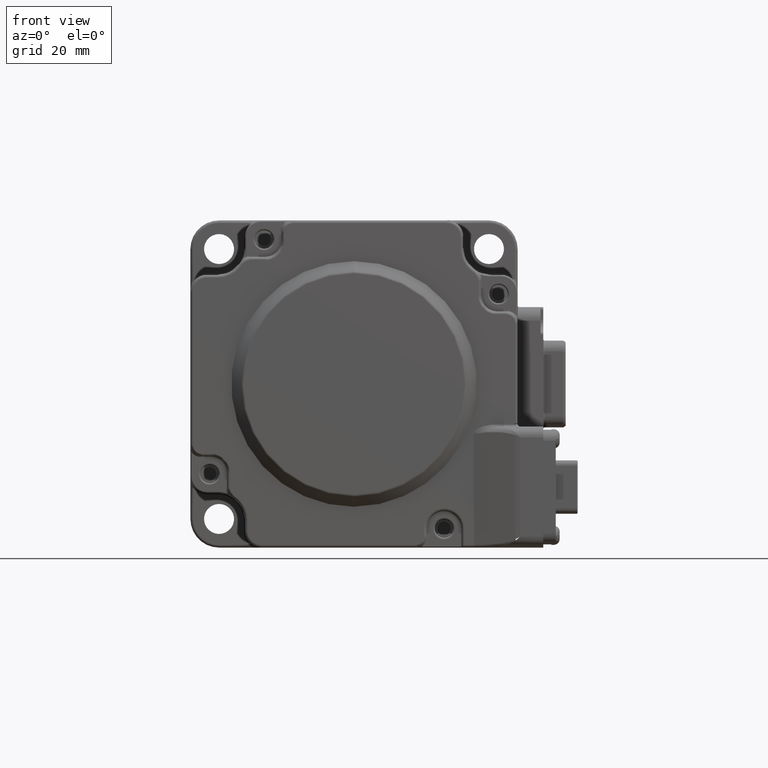
[diagram: clean part render]
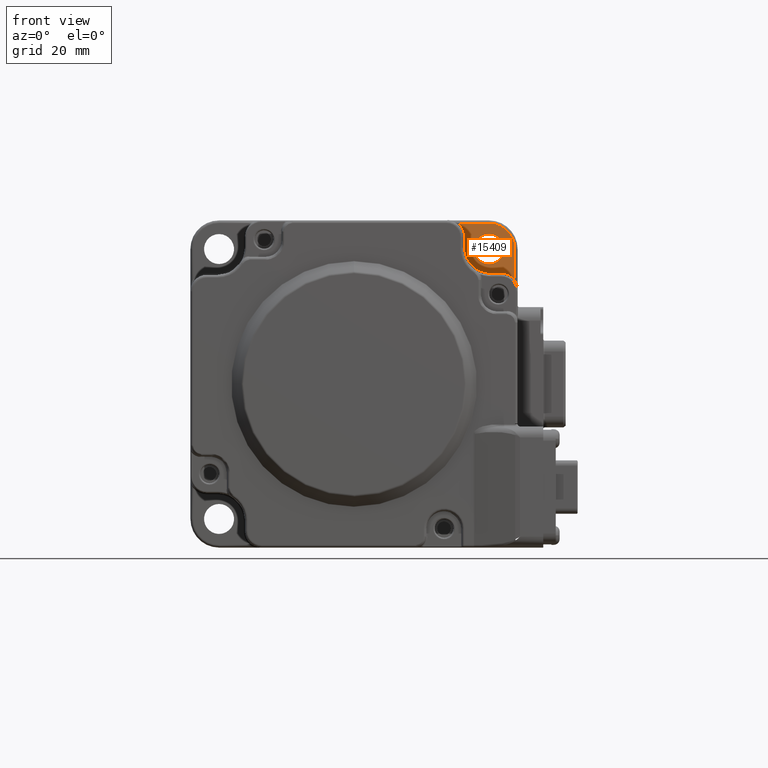
[diagram: same view with one face highlighted and labeled with its STEP entity id]
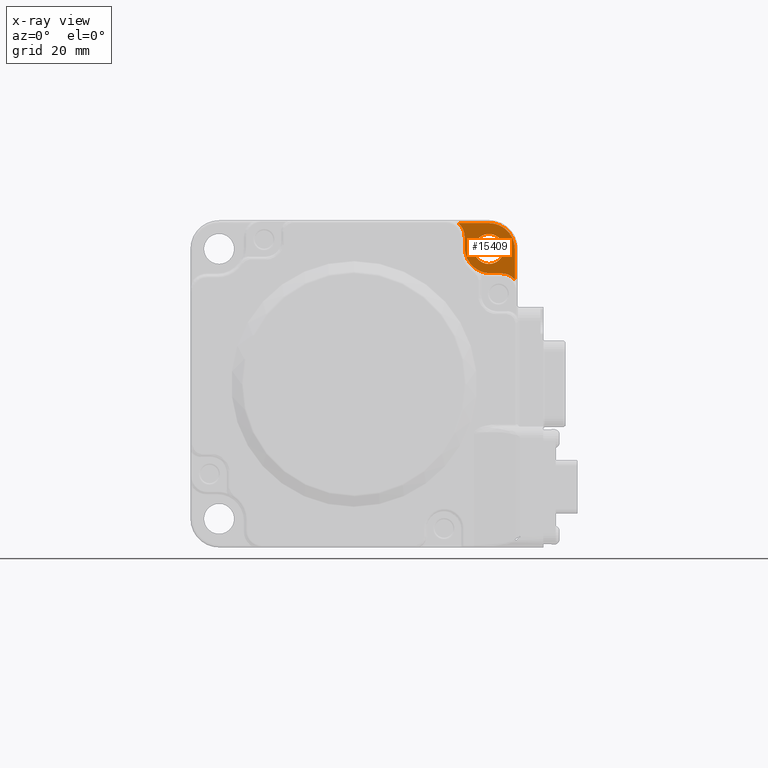
[diagram: x-ray of the same camera — body ghosted, the highlighted face saturated]
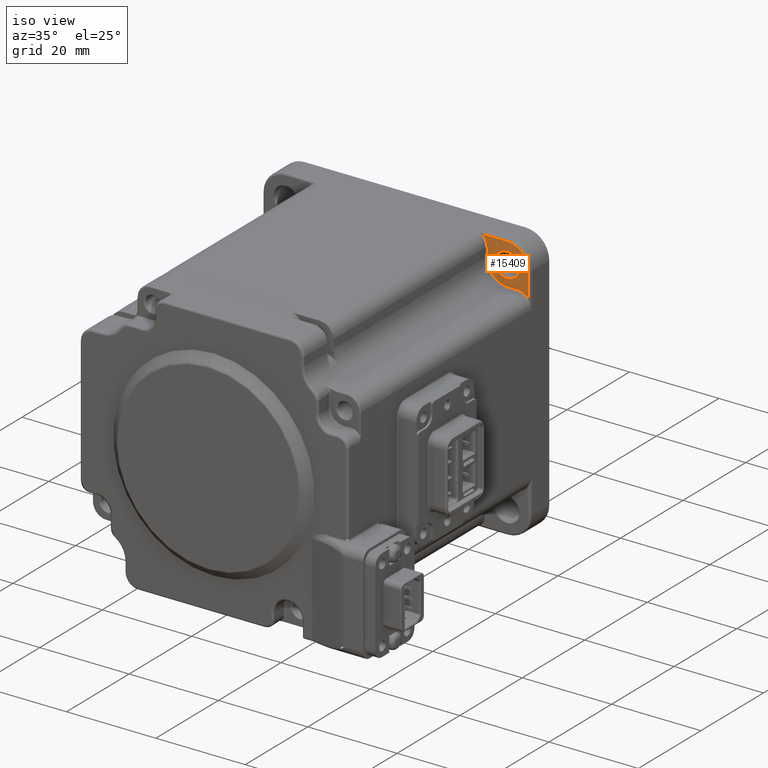
[diagram: same view with one face highlighted and labeled with its STEP entity id]
A machine part, front view. The second image highlights one B-rep face of the part: STEP entity #15409.
The next image is the same camera in x-ray: the body ghosted, the highlighted face saturated — about 0% of this face is hidden behind the body in this view.
A second angle (iso view) of the same face is appended — the face is thin or edge-on in the first view.
In plain terms, the highlighted planar face has unit normal (0, -1, 0).
Its self-contained STEP definition (entity closure, byte-faithful):
#425 = CARTESIAN_POINT ( 'NONE',  ( 0.000000000000000000, 5.500000000000000000, 20.30000000000000426 ) ) ;
#681 = DIRECTION ( 'NONE',  ( 0.000000000000000000, 0.000000000000000000, -1.000000000000000000 ) ) ;
#827 = CIRCLE ( 'NONE', #19339, 3.299999999999998934 ) ;
#946 = ORIENTED_EDGE ( 'NONE', *, *, #27620, .T. ) ;
#1015 = EDGE_CURVE ( 'NONE', #10910, #10498, #18280, .T. ) ;
#1281 = DIRECTION ( 'NONE',  ( 0.000000000000000000, 0.000000000000000000, -1.000000000000000000 ) ) ;
#1431 = ORIENTED_EDGE ( 'NONE', *, *, #1763, .T. ) ;
#1540 = VERTEX_POINT ( 'NONE', #9597 ) ;
#1646 = VERTEX_POINT ( 'NONE', #14825 ) ;
#1763 = EDGE_CURVE ( 'NONE', #1859, #10910, #4348, .T. ) ;
#1859 = VERTEX_POINT ( 'NONE', #18486 ) ;
#2056 = CIRCLE ( 'NONE', #11103, 4.750000000000000888 ) ;
#2080 = DIRECTION ( 'NONE',  ( 0.000000000000000000, 0.000000000000000000, -1.000000000000000000 ) ) ;
#2357 = CARTESIAN_POINT ( 'NONE',  ( 25.00000000000003197, 5.500000000000000000, 20.30000000000000426 ) ) ;
#2659 = DIRECTION ( 'NONE',  ( -0.000000000000000000, 1.000000000000000000, -0.000000000000000000 ) ) ;
#3117 = EDGE_CURVE ( 'NONE', #1540, #13884, #827, .T. ) ;
#3940 = CARTESIAN_POINT ( 'NONE',  ( 29.50000000000000000, 5.500000000000000000, 24.74999999999999645 ) ) ;
#4348 = LINE ( 'NONE', #17928, #11992 ) ;
#4621 = CARTESIAN_POINT ( 'NONE',  ( 24.74873734152903282, 5.500000000000000000, 27.49873734152929217 ) ) ;
#5355 = VERTEX_POINT ( 'NONE', #4621 ) ;
#5525 = AXIS2_PLACEMENT_3D ( 'NONE', #5545, #14308, #14036 ) ;
#5545 = CARTESIAN_POINT ( 'NONE',  ( 24.74873734152903282, 5.500000000000000000, 24.74873734152929217 ) ) ;
#5908 = CARTESIAN_POINT ( 'NONE',  ( 24.74999999999999645, 5.500000000000000000, 24.74999999999999645 ) ) ;
#6088 = LINE ( 'NONE', #425, #14738 ) ;
#6504 = CARTESIAN_POINT ( 'NONE',  ( 0.000000000000000000, 5.500000000000000000, 0.000000000000000000 ) ) ;
#6550 = DIRECTION ( 'NONE',  ( -2.102695122396131592E-15, 0.000000000000000000, -1.000000000000000000 ) ) ;
#6648 = DIRECTION ( 'NONE',  ( 1.000000000000000000, -0.000000000000000000, -0.000000000000000000 ) ) ;
#7278 = EDGE_LOOP ( 'NONE', ( #946, #15763 ) ) ;
#7298 = VERTEX_POINT ( 'NONE', #7523 ) ;
#7523 = CARTESIAN_POINT ( 'NONE',  ( 24.74873734152903282, 5.500000000000000000, 21.99873734152928861 ) ) ;
#8859 = AXIS2_PLACEMENT_3D ( 'NONE', #6504, #13286, #15284 ) ;
#9151 = DIRECTION ( 'NONE',  ( -0.000000000000000000, -0.000000000000000000, -1.000000000000000000 ) ) ;
#9467 = CARTESIAN_POINT ( 'NONE',  ( 20.29999999999999716, 5.500000000000000000, 25.00000000000003908 ) ) ;
#9597 = CARTESIAN_POINT ( 'NONE',  ( 26.99999999999997513, 5.500000000000000000, 20.30000000000000426 ) ) ;
#9629 = DIRECTION ( 'NONE',  ( 0.000000000000000000, -1.000000000000000000, 0.000000000000000000 ) ) ;
#10498 = VERTEX_POINT ( 'NONE', #2357 ) ;
#10910 = VERTEX_POINT ( 'NONE', #9467 ) ;
#10943 = DIRECTION ( 'NONE',  ( -0.000000000000000000, 1.000000000000000000, -0.000000000000000000 ) ) ;
#11103 = AXIS2_PLACEMENT_3D ( 'NONE', #5908, #27569, #2080 ) ;
#11518 = ORIENTED_EDGE ( 'NONE', *, *, #27879, .T. ) ;
#11992 = VECTOR ( 'NONE', #9151, 1000.000000000000000 ) ;
#12116 = DIRECTION ( 'NONE',  ( 0.000000000000000000, 0.000000000000000000, -1.000000000000000000 ) ) ;
#12288 = AXIS2_PLACEMENT_3D ( 'NONE', #20060, #2659, #681 ) ;
#12332 = VERTEX_POINT ( 'NONE', #3940 ) ;
#13195 = CARTESIAN_POINT ( 'NONE',  ( 17.00000000000000000, 5.500000000000000000, 27.00000000000000355 ) ) ;
#13286 = DIRECTION ( 'NONE',  ( 0.000000000000000000, -1.000000000000000000, 0.000000000000000000 ) ) ;
#13434 = CARTESIAN_POINT ( 'NONE',  ( 16.99999999999997868, 5.500000000000000000, 29.50000000000000000 ) ) ;
#13884 = VERTEX_POINT ( 'NONE', #25300 ) ;
#14036 = DIRECTION ( 'NONE',  ( 0.000000000000000000, 0.000000000000000000, -1.000000000000000000 ) ) ;
#14308 = DIRECTION ( 'NONE',  ( -0.000000000000000000, 1.000000000000000000, -0.000000000000000000 ) ) ;
#14738 = VECTOR ( 'NONE', #6648, 1000.000000000000000 ) ;
#14773 = CARTESIAN_POINT ( 'NONE',  ( 24.74999999999999645, 5.500000000000000000, 29.50000000000000000 ) ) ;
#14825 = CARTESIAN_POINT ( 'NONE',  ( 19.15406592285380682, 5.500000000000000000, 29.50000000000000000 ) ) ;
#14846 = ORIENTED_EDGE ( 'NONE', *, *, #15543, .T. ) ;
#15284 = DIRECTION ( 'NONE',  ( 0.000000000000000000, -0.000000000000000000, -1.000000000000000000 ) ) ;
#15381 = EDGE_CURVE ( 'NONE', #10498, #1540, #6088, .T. ) ;
#15400 = EDGE_CURVE ( 'NONE', #27802, #1646, #26325, .T. ) ;
#15409 = ADVANCED_FACE ( 'NONE', ( #26056, #19808 ), #17549, .T. ) ;
#15543 = EDGE_CURVE ( 'NONE', #13884, #12332, #15843, .T. ) ;
#15763 = ORIENTED_EDGE ( 'NONE', *, *, #26939, .T. ) ;
#15843 = LINE ( 'NONE', #17825, #17450 ) ;
#15991 = ORIENTED_EDGE ( 'NONE', *, *, #1015, .T. ) ;
#16079 = DIRECTION ( 'NONE',  ( -0.000000000000000000, 1.000000000000000000, -0.000000000000000000 ) ) ;
#17450 = VECTOR ( 'NONE', #20087, 1000.000000000000000 ) ;
#17486 = ORIENTED_EDGE ( 'NONE', *, *, #18506, .T. ) ;
#17549 = PLANE ( 'NONE',  #8859 ) ;
#17726 = CIRCLE ( 'NONE', #5525, 2.750000000000002665 ) ;
#17825 = CARTESIAN_POINT ( 'NONE',  ( 29.50000000000000000, 5.500000000000000000, 24.74999999999999645 ) ) ;
#17928 = CARTESIAN_POINT ( 'NONE',  ( 20.29999999999999716, 5.500000000000000000, 0.000000000000000000 ) ) ;
#18280 = CIRCLE ( 'NONE', #24168, 4.699999999999999289 ) ;
#18288 = EDGE_LOOP ( 'NONE', ( #24347, #25567, #14846, #17486, #22693, #11518, #1431, #15991 ) ) ;
#18486 = CARTESIAN_POINT ( 'NONE',  ( 20.29999999999999716, 5.500000000000000000, 26.99999999999997513 ) ) ;
#18506 = EDGE_CURVE ( 'NONE', #12332, #27802, #2056, .T. ) ;
#18607 = AXIS2_PLACEMENT_3D ( 'NONE', #13195, #10943, #6550 ) ;
#19339 = AXIS2_PLACEMENT_3D ( 'NONE', #22887, #16079, #12116 ) ;
#19808 = FACE_OUTER_BOUND ( 'NONE', #18288, .T. ) ;
#20060 = CARTESIAN_POINT ( 'NONE',  ( 24.74873734152903282, 5.500000000000000000, 24.74873734152929217 ) ) ;
#20087 = DIRECTION ( 'NONE',  ( 0.000000000000000000, 0.000000000000000000, 1.000000000000000000 ) ) ;
#21514 = VECTOR ( 'NONE', #25787, 1000.000000000000000 ) ;
#22693 = ORIENTED_EDGE ( 'NONE', *, *, #15400, .T. ) ;
#22887 = CARTESIAN_POINT ( 'NONE',  ( 27.00000000000000000, 5.500000000000000000, 17.00000000000000355 ) ) ;
#24168 = AXIS2_PLACEMENT_3D ( 'NONE', #25064, #9629, #1281 ) ;
#24347 = ORIENTED_EDGE ( 'NONE', *, *, #15381, .T. ) ;
#25064 = CARTESIAN_POINT ( 'NONE',  ( 25.00000000000000000, 5.500000000000000000, 25.00000000000000355 ) ) ;
#25300 = CARTESIAN_POINT ( 'NONE',  ( 29.50000000000000000, 5.500000000000000000, 19.15406592285380682 ) ) ;
#25567 = ORIENTED_EDGE ( 'NONE', *, *, #3117, .T. ) ;
#25787 = DIRECTION ( 'NONE',  ( -1.000000000000000000, 0.000000000000000000, 5.782411586589357392E-17 ) ) ;
#26056 = FACE_BOUND ( 'NONE', #7278, .T. ) ;
#26325 = LINE ( 'NONE', #13434, #21514 ) ;
#26763 = CIRCLE ( 'NONE', #12288, 2.750000000000002665 ) ;
#26939 = EDGE_CURVE ( 'NONE', #7298, #5355, #17726, .T. ) ;
#27217 = CIRCLE ( 'NONE', #18607, 3.299999999999997158 ) ;
#27569 = DIRECTION ( 'NONE',  ( 0.000000000000000000, -1.000000000000000000, 0.000000000000000000 ) ) ;
#27620 = EDGE_CURVE ( 'NONE', #5355, #7298, #26763, .T. ) ;
#27802 = VERTEX_POINT ( 'NONE', #14773 ) ;
#27879 = EDGE_CURVE ( 'NONE', #1646, #1859, #27217, .T. ) ;